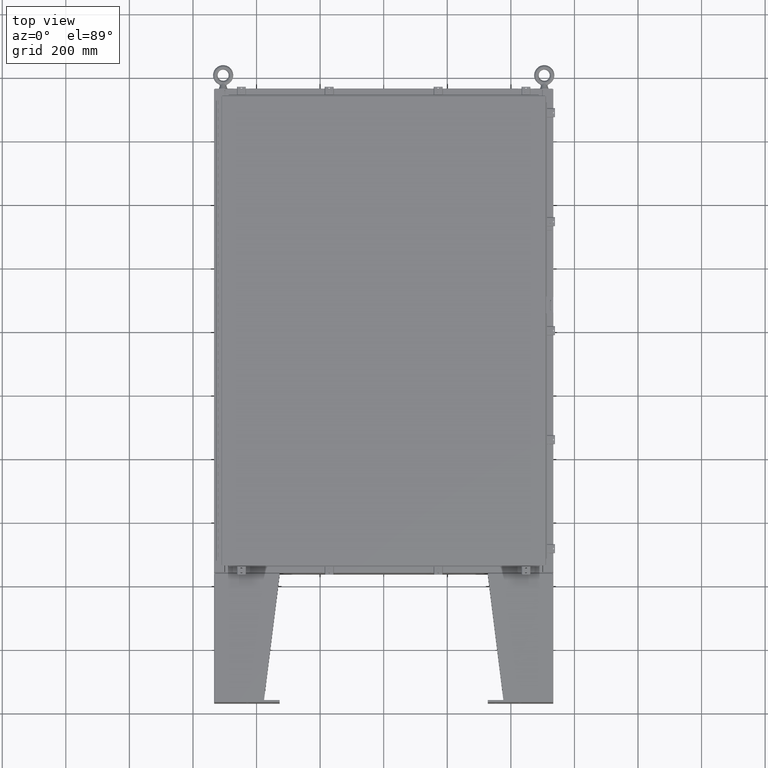
[diagram: clean part render]
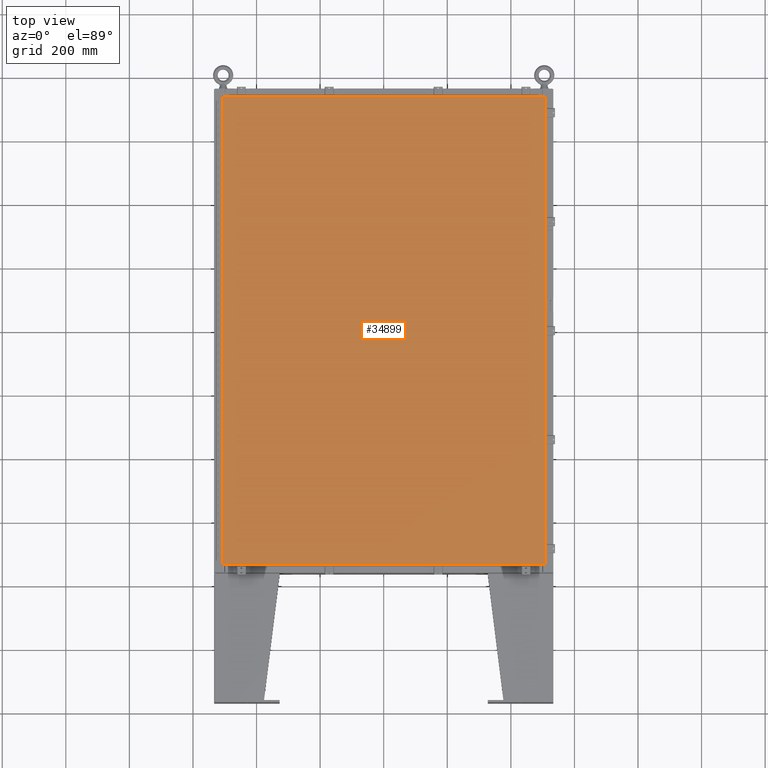
[diagram: same view with one face highlighted and labeled with its STEP entity id]
A machine part, top view. The second image highlights one B-rep face of the part: STEP entity #34899.
In plain terms, the highlighted planar face has unit normal (0, 0, -1).
Its self-contained STEP definition (entity closure, byte-faithful):
#2860 = CARTESIAN_POINT ( 'NONE',  ( -19.99030000000001600, 29.00630000000000700, 8.485802830319618300E-015 ) ) ;
#4660 = LINE ( 'NONE', #66429, #58772 ) ;
#8332 = VECTOR ( 'NONE', #21811, 39.37007874015748100 ) ;
#13761 = EDGE_CURVE ( 'NONE', #66301, #25197, #27745, .T. ) ;
#14138 = DIRECTION ( 'NONE',  ( -1.000000000000000000, -0.0000000000000000000, -0.0000000000000000000 ) ) ;
#14240 = DIRECTION ( 'NONE',  ( 1.000000000000000000, -0.0000000000000000000, -0.0000000000000000000 ) ) ;
#14725 = VERTEX_POINT ( 'NONE', #65752 ) ;
#14895 = EDGE_CURVE ( 'NONE', #14725, #66301, #4660, .T. ) ;
#21811 = DIRECTION ( 'NONE',  ( 0.0000000000000000000, 1.000000000000000000, 0.0000000000000000000 ) ) ;
#24479 = EDGE_CURVE ( 'NONE', #25197, #64563, #26598, .T. ) ;
#25197 = VERTEX_POINT ( 'NONE', #42163 ) ;
#25347 = CARTESIAN_POINT ( 'NONE',  ( -19.99030000000001600, 29.00630000000000700, 8.485802830319618300E-015 ) ) ;
#25389 = AXIS2_PLACEMENT_3D ( 'NONE', #28938, #65474, #34136 ) ;
#26598 = LINE ( 'NONE', #62006, #37150 ) ;
#27087 = EDGE_LOOP ( 'NONE', ( #41057, #63059, #55674, #55393 ) ) ;
#27745 = LINE ( 'NONE', #2860, #53950 ) ;
#28938 = CARTESIAN_POINT ( 'NONE',  ( 0.0000000000000000000, 0.0000000000000000000, 0.0000000000000000000 ) ) ;
#34136 = DIRECTION ( 'NONE',  ( -1.000000000000000000, 0.0000000000000000000, -0.0000000000000000000 ) ) ;
#34899 = ADVANCED_FACE ( 'NONE', ( #47098 ), #60219, .F. ) ;
#37150 = VECTOR ( 'NONE', #14240, 39.37007874015748100 ) ;
#41057 = ORIENTED_EDGE ( 'NONE', *, *, #24479, .T. ) ;
#42163 = CARTESIAN_POINT ( 'NONE',  ( -19.99030000000001600, -29.00629999999999600, 1.946441695485787500E-015 ) ) ;
#45694 = CARTESIAN_POINT ( 'NONE',  ( 19.99030000000000100, -29.00629999999998900, 1.946441695485787500E-015 ) ) ;
#47098 = FACE_OUTER_BOUND ( 'NONE', #27087, .T. ) ;
#53950 = VECTOR ( 'NONE', #67122, 39.37007874015748100 ) ;
#55393 = ORIENTED_EDGE ( 'NONE', *, *, #13761, .T. ) ;
#55674 = ORIENTED_EDGE ( 'NONE', *, *, #14895, .T. ) ;
#58466 = CARTESIAN_POINT ( 'NONE',  ( 19.99030000000000100, -29.00629999999998900, 1.946441695485787500E-015 ) ) ;
#58772 = VECTOR ( 'NONE', #14138, 39.37007874015748100 ) ;
#60219 = PLANE ( 'NONE',  #25389 ) ;
#61658 = EDGE_CURVE ( 'NONE', #64563, #14725, #64082, .T. ) ;
#62006 = CARTESIAN_POINT ( 'NONE',  ( -19.99030000000001600, -29.00629999999999600, 1.946441695485787500E-015 ) ) ;
#63059 = ORIENTED_EDGE ( 'NONE', *, *, #61658, .T. ) ;
#64082 = LINE ( 'NONE', #58466, #8332 ) ;
#64563 = VERTEX_POINT ( 'NONE', #45694 ) ;
#65474 = DIRECTION ( 'NONE',  ( 0.0000000000000000000, 0.0000000000000000000, -1.000000000000000000 ) ) ;
#65752 = CARTESIAN_POINT ( 'NONE',  ( 19.99029999999999800, 29.00630000000001400, 1.946441695485787500E-015 ) ) ;
#66301 = VERTEX_POINT ( 'NONE', #25347 ) ;
#66429 = CARTESIAN_POINT ( 'NONE',  ( 19.99029999999999800, 29.00630000000001400, 1.946441695485787500E-015 ) ) ;
#67122 = DIRECTION ( 'NONE',  ( 0.0000000000000000000, -1.000000000000000000, 0.0000000000000000000 ) ) ;